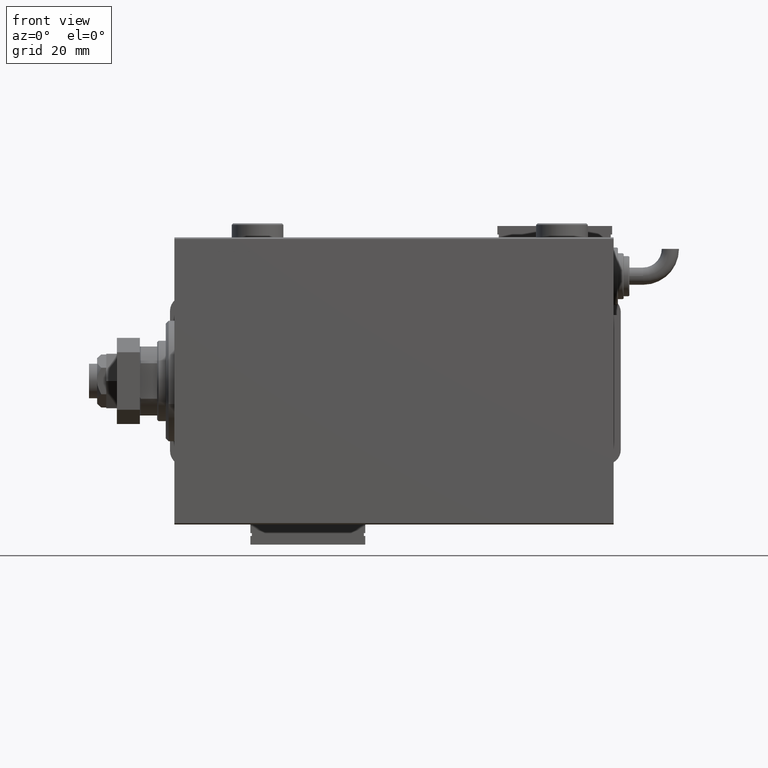
[diagram: clean part render]
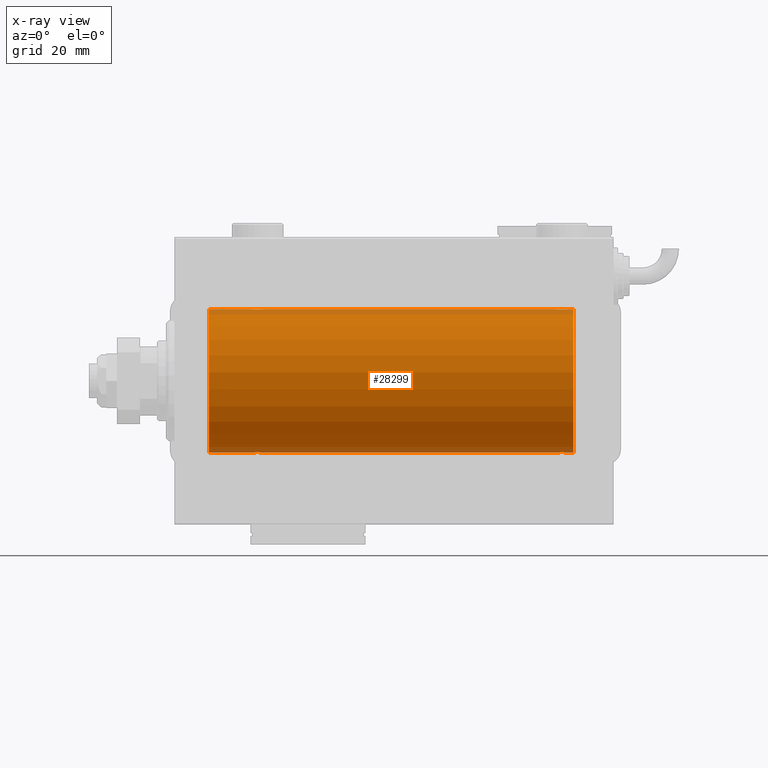
[diagram: x-ray — body ghosted, one internal face saturated and labeled with its STEP entity id]
A machine part, front view, then the same camera in x-ray: the body is ghosted and one INTERNAL B-rep face — a face not visible from any outside direction — is saturated and labeled: STEP entity #28299.
In plain terms, the highlighted cylindrical surface (partial cylindrical patch) has radius 25 mm, axis along (-1, -0, -0).
Its self-contained STEP definition (entity closure, byte-faithful):
#92 = ORIENTED_EDGE ( 'NONE', *, *, #48829, .T. ) ;
#120 = CARTESIAN_POINT ( 'NONE',  ( 27.01250184165601453, -1.525407911884366863, 24.95379469572361941 ) ) ;
#150 = CARTESIAN_POINT ( 'NONE',  ( 139.0000000000000000, 0.000000000000000000, 25.00000000000000000 ) ) ;
#619 = CARTESIAN_POINT ( 'NONE',  ( 136.1072384583841028, -2.247417070759893942, 24.89885693081946627 ) ) ;
#912 = CARTESIAN_POINT ( 'NONE',  ( 135.8043566091630510, -2.372734907014173000, 24.88722742718433878 ) ) ;
#1842 = CARTESIAN_POINT ( 'NONE',  ( 26.50000000000000355, -1.828402720252098442E-15, -25.00000000000000000 ) ) ;
#1928 = CARTESIAN_POINT ( 'NONE',  ( 135.8078834240581330, -2.371528299825745645, -24.88734287464372130 ) ) ;
#1951 = CARTESIAN_POINT ( 'NONE',  ( 139.0000000000000000, 0.000000000000000000, 0.000000000000000000 ) ) ;
#2135 = VECTOR ( 'NONE', #45129, 1000.000000000000000 ) ;
#2373 = CARTESIAN_POINT ( 'NONE',  ( 12.00000000000001066, 3.061616997868383043E-15, -25.00000000000000000 ) ) ;
#2447 = CARTESIAN_POINT ( 'NONE',  ( 27.89276154161590426, -2.247417070759891278, -24.89885693081946272 ) ) ;
#2837 = CARTESIAN_POINT ( 'NONE',  ( 136.1103679650886988, -2.245863995402897384, -24.89899750494197761 ) ) ;
#3706 = EDGE_CURVE ( 'NONE', #10715, #47075, #18852, .T. ) ;
#3928 = CARTESIAN_POINT ( 'NONE',  ( 139.0000000000000000, 0.000000000000000000, 25.00000000000000000 ) ) ;
#3998 = AXIS2_PLACEMENT_3D ( 'NONE', #58418, #59022, #53474 ) ;
#4640 = CARTESIAN_POINT ( 'NONE',  ( 137.4999999999999716, -0.3305063766663748903, 24.99999999999999289 ) ) ;
#4755 = CARTESIAN_POINT ( 'NONE',  ( 31.16827641493957657, -1.255214705003185438, 24.96884293994578385 ) ) ;
#4865 = ORIENTED_EDGE ( 'NONE', *, *, #32957, .F. ) ;
#4951 = VERTEX_POINT ( 'NONE', #60870 ) ;
#5244 = CARTESIAN_POINT ( 'NONE',  ( 133.0125018416559328, -1.525407911884356205, 24.95379469572361586 ) ) ;
#5436 = ORIENTED_EDGE ( 'NONE', *, *, #46568, .T. ) ;
#5553 = CARTESIAN_POINT ( 'NONE',  ( 135.6456066614862834, -2.420689345803761938, 24.88254961038872892 ) ) ;
#5608 = ORIENTED_EDGE ( 'NONE', *, *, #52421, .T. ) ;
#6167 = CARTESIAN_POINT ( 'NONE',  ( 31.24760251019551305, -1.106703319666880514, -24.97594585958023927 ) ) ;
#6482 = CARTESIAN_POINT ( 'NONE',  ( 28.35439333851368815, -2.420689345803754833, -24.88254961038873958 ) ) ;
#6573 = CARTESIAN_POINT ( 'NONE',  ( 132.7539362090593329, -1.109818057797415047, -24.97580694515542987 ) ) ;
#6863 = CARTESIAN_POINT ( 'NONE',  ( 134.6740342996053812, -2.484007091859762983, -24.87630842367762796 ) ) ;
#7083 = CARTESIAN_POINT ( 'NONE',  ( 31.17011290280924740, -1.252049606094333578, -24.96900299967627390 ) ) ;
#7174 = CARTESIAN_POINT ( 'NONE',  ( 132.5665064476025066, -0.6588655613945854084, -24.99312727339970763 ) ) ;
#7522 = EDGE_CURVE ( 'NONE', #10715, #37868, #30656, .T. ) ;
#7986 = CARTESIAN_POINT ( 'NONE',  ( 139.0000000000000000, 0.000000000000000000, 25.00000000000000000 ) ) ;
#8484 = CARTESIAN_POINT ( 'NONE',  ( 31.24606379094066000, -1.109818057797419932, 24.97580694515541921 ) ) ;
#8778 = CARTESIAN_POINT ( 'NONE',  ( 28.67052319885730682, -2.483544361357271857, 24.87635491893501793 ) ) ;
#9081 = CARTESIAN_POINT ( 'NONE',  ( 28.19211657594194520, -2.371528299825748309, 24.88734287464370709 ) ) ;
#9159 = VECTOR ( 'NONE', #16157, 1000.000000000000000 ) ;
#9386 = CARTESIAN_POINT ( 'NONE',  ( 30.25084023924054932, -2.170728182476723500, 24.90574631553725027 ) ) ;
#9418 = DIRECTION ( 'NONE',  ( -1.000000000000000000, -0.000000000000000000, -0.000000000000000000 ) ) ;
#9991 = AXIS2_PLACEMENT_3D ( 'NONE', #1951, #20782, #39634 ) ;
#10664 = FACE_OUTER_BOUND ( 'NONE', #45503, .T. ) ;
#10715 = VERTEX_POINT ( 'NONE', #13430 ) ;
#10784 = CARTESIAN_POINT ( 'NONE',  ( 134.8329350482193831, -2.499872792855079240, 24.87469871246083031 ) ) ;
#11101 = CARTESIAN_POINT ( 'NONE',  ( 30.25383195424503313, -2.169003991399864884, -24.90589728951138682 ) ) ;
#11192 = CARTESIAN_POINT ( 'NONE',  ( 135.6490439016909875, -2.419770561643898255, -24.88263927071751169 ) ) ;
#11709 = CARTESIAN_POINT ( 'NONE',  ( 27.47743225659810307, -1.989585286700239708, -24.92087098724766392 ) ) ;
#12008 = CARTESIAN_POINT ( 'NONE',  ( 28.67403429960539896, -2.484007091859758543, -24.87630842367763151 ) ) ;
#12416 = CARTESIAN_POINT ( 'NONE',  ( 134.1956433908369775, -2.372734907014170336, -24.88722742718433167 ) ) ;
#12676 = CARTESIAN_POINT ( 'NONE',  ( 139.0000000000000000, 3.061616997868383043E-15, -25.00000000000000000 ) ) ;
#12830 = B_SPLINE_CURVE_WITH_KNOTS ( 'NONE', 3,
 ( #33346, #38909, #57766, #15425, #47575, #24070, #43548, #5244, #24372, #20052, #34269, #57143, #19732, #48178, #37686, #23463, #10784, #53123, #29622, #5553, #912, #619, #38591, #52507, #42940, #29017, #56853, #19442, #14797, #38288, #4640, #28710 ),
 .UNSPECIFIED., .F., .F.,
 ( 4, 2, 2, 2, 2, 2, 2, 2, 2, 2, 2, 2, 2, 2, 2, 4 ),
 ( 0.007821024441662296350, 0.008309723826317906223, 0.008798423210973516095, 0.009287122595629124233, 0.009775821980284732371, 0.01026452136494034224, 0.01075322074959595212, 0.01124192013425156025, 0.01173061951890716839, 0.01221931890356277826, 0.01270801828821838814, 0.01319671767287399627, 0.01368541705752960788, 0.01417411644218521602, 0.01466281582684082589, 0.01564021459615201268 ),
 .UNSPECIFIED. ) ;
#13430 = CARTESIAN_POINT ( 'NONE',  ( 139.0000000000000000, 3.061616997868383043E-15, -25.00000000000000000 ) ) ;
#13445 = LINE ( 'NONE', #150, #28877 ) ;
#14014 = CARTESIAN_POINT ( 'NONE',  ( 29.32596570039459394, -2.484007091859766092, 24.87630842367763506 ) ) ;
#14797 = CARTESIAN_POINT ( 'NONE',  ( 137.2460637909406955, -1.109818057797409718, 24.97580694515542632 ) ) ;
#14947 = EDGE_CURVE ( 'NONE', #36517, #4951, #50306, .T. ) ;
#15425 = CARTESIAN_POINT ( 'NONE',  ( 132.5798509077907283, -0.6480119923854213981, 24.99212088949391131 ) ) ;
#15428 = CARTESIAN_POINT ( 'NONE',  ( 29.80788342405805835, -2.371528299825740760, -24.88734287464371064 ) ) ;
#15823 = CARTESIAN_POINT ( 'NONE',  ( 135.3294768011427323, -2.483544361357263419, -24.87635491893501083 ) ) ;
#15850 = CIRCLE ( 'NONE', #3998, 25.00000000000000000 ) ;
#15912 = DIRECTION ( 'NONE',  ( 0.000000000000000000, 0.000000000000000000, 1.000000000000000000 ) ) ;
#16157 = DIRECTION ( 'NONE',  ( -1.000000000000000000, -0.000000000000000000, -0.000000000000000000 ) ) ;
#16242 = ORIENTED_EDGE ( 'NONE', *, *, #51890, .F. ) ;
#16345 = CARTESIAN_POINT ( 'NONE',  ( 30.11036796508864555, -2.245863995402895164, -24.89899750494197406 ) ) ;
#16436 = CARTESIAN_POINT ( 'NONE',  ( 133.8927615416158972, -2.247417070759893498, -24.89885693081946982 ) ) ;
#16489 = CARTESIAN_POINT ( 'NONE',  ( 137.5000000000000000, 1.404322005998729010E-15, 25.00000000000000000 ) ) ;
#16645 = CARTESIAN_POINT ( 'NONE',  ( 26.75393620905933645, -1.109818057797413715, -24.97580694515542277 ) ) ;
#16730 = CARTESIAN_POINT ( 'NONE',  ( 137.4841784005766101, -0.3254210271412156796, -24.99840249400845238 ) ) ;
#17045 = CARTESIAN_POINT ( 'NONE',  ( 136.5253618224307957, -1.987446652080256060, -24.92104239223419881 ) ) ;
#18052 = CARTESIAN_POINT ( 'NONE',  ( 30.52256774340189338, -1.989585286700249256, 24.92087098724766747 ) ) ;
#18096 = ORIENTED_EDGE ( 'NONE', *, *, #26273, .T. ) ;
#18335 = VERTEX_POINT ( 'NONE', #28065 ) ;
#18852 = CIRCLE ( 'NONE', #9991, 25.00000000000000000 ) ;
#18947 = CARTESIAN_POINT ( 'NONE',  ( 31.50000000000000000, -6.390602579065537931E-15, 25.00000000000000000 ) ) ;
#19442 = CARTESIAN_POINT ( 'NONE',  ( 137.1682764149395837, -1.255214705003166564, 24.96884293994578385 ) ) ;
#19486 = DIRECTION ( 'NONE',  ( -1.000000000000000000, -0.000000000000000000, -0.000000000000000000 ) ) ;
#19732 = CARTESIAN_POINT ( 'NONE',  ( 133.8896320349113580, -2.245863995402900049, 24.89899750494197050 ) ) ;
#20052 = CARTESIAN_POINT ( 'NONE',  ( 133.3461666385066167, -1.881857718844717642, 24.92933960374833546 ) ) ;
#20366 = CARTESIAN_POINT ( 'NONE',  ( 26.50000000000001066, -0.3305063766663757785, -25.00000000000000355 ) ) ;
#20580 = LINE ( 'NONE', #52733, #58142 ) ;
#20758 = CARTESIAN_POINT ( 'NONE',  ( 137.5000000000000000, 3.061616978453486307E-15, -25.00000000000000000 ) ) ;
#20782 = DIRECTION ( 'NONE',  ( -1.000000000000000000, 0.000000000000000000, 0.000000000000000000 ) ) ;
#21064 = CARTESIAN_POINT ( 'NONE',  ( 137.2476025101955202, -1.106703319666876295, -24.97594585958023927 ) ) ;
#23281 = CARTESIAN_POINT ( 'NONE',  ( 26.51582159942343608, -0.3254210271412222300, 24.99840249400844883 ) ) ;
#23463 = CARTESIAN_POINT ( 'NONE',  ( 134.6705231988572962, -2.483544361357268304, 24.87635491893501793 ) ) ;
#23571 = CARTESIAN_POINT ( 'NONE',  ( 31.49999999999997158, -0.3305063766663704494, 25.00000000000000000 ) ) ;
#24070 = CARTESIAN_POINT ( 'NONE',  ( 132.7523974898044798, -1.106703319666880958, 24.97594585958023217 ) ) ;
#24251 = CYLINDRICAL_SURFACE ( 'NONE', #36446, 25.00000000000000000 ) ;
#24372 = CARTESIAN_POINT ( 'NONE',  ( 133.1158761721353301, -1.651251241585103724, 24.94567559498349141 ) ) ;
#24988 = CARTESIAN_POINT ( 'NONE',  ( 27.34878866440888601, -1.884161199660611796, -24.92916496727982434 ) ) ;
#25328 = CARTESIAN_POINT ( 'NONE',  ( 31.50000000000000000, -6.390602579065537931E-15, 25.00000000000000000 ) ) ;
#25530 = VERTEX_POINT ( 'NONE', #42471 ) ;
#25589 = CARTESIAN_POINT ( 'NONE',  ( 30.98749815834397481, -1.525407911884360868, -24.95379469572361941 ) ) ;
#25764 = EDGE_CURVE ( 'NONE', #36517, #54232, #56634, .T. ) ;
#25898 = CARTESIAN_POINT ( 'NONE',  ( 26.83172358506042698, -1.255214705003176112, -24.96884293994577320 ) ) ;
#25988 = CARTESIAN_POINT ( 'NONE',  ( 132.5000000000000284, -0.3305063766663819402, -24.99999999999999645 ) ) ;
#26273 = EDGE_CURVE ( 'NONE', #18335, #42145, #33392, .T. ) ;
#26298 = CARTESIAN_POINT ( 'NONE',  ( 133.0146196628290340, -1.528152964861315244, -24.95362559291378801 ) ) ;
#26467 = VERTEX_POINT ( 'NONE', #42914 ) ;
#27317 = CARTESIAN_POINT ( 'NONE',  ( 31.43349355239747567, -0.6588655613945917366, 24.99312727339970053 ) ) ;
#27617 = CARTESIAN_POINT ( 'NONE',  ( 30.98538033717094464, -1.528152964861315244, 24.95362559291378801 ) ) ;
#27927 = CARTESIAN_POINT ( 'NONE',  ( 28.35095609830903385, -2.419770561643910245, 24.88263927071751169 ) ) ;
#28065 = CARTESIAN_POINT ( 'NONE',  ( 26.50000000000000355, -1.828402720252098442E-15, -25.00000000000000000 ) ) ;
#28230 = CARTESIAN_POINT ( 'NONE',  ( 30.65121133559111755, -1.884161199660622454, 24.92916496727982434 ) ) ;
#28299 = ADVANCED_FACE ( 'NONE', ( #10664 ), #24251, .F. ) ;
#28710 = CARTESIAN_POINT ( 'NONE',  ( 137.5000000000000000, 1.404322005998729010E-15, 25.00000000000000000 ) ) ;
#28877 = VECTOR ( 'NONE', #9418, 1000.000000000000000 ) ;
#29017 = CARTESIAN_POINT ( 'NONE',  ( 136.8818595414864205, -1.653834020452942477, 24.94550385189585029 ) ) ;
#29622 = CARTESIAN_POINT ( 'NONE',  ( 135.3259657003945620, -2.484007091859763872, 24.87630842367762796 ) ) ;
#29930 = CARTESIAN_POINT ( 'NONE',  ( 29.32947680114268962, -2.483544361357264751, -24.87635491893502149 ) ) ;
#30026 = CARTESIAN_POINT ( 'NONE',  ( 134.3543933385136881, -2.420689345803760162, -24.88254961038872892 ) ) ;
#30243 = CARTESIAN_POINT ( 'NONE',  ( 26.56650644760253499, -0.6588655613945862966, -24.99312727339971119 ) ) ;
#30314 = CARTESIAN_POINT ( 'NONE',  ( 26.50000000000000355, -1.940558383798427991E-23, 25.00000000000000000 ) ) ;
#30335 = CARTESIAN_POINT ( 'NONE',  ( 136.9874981583439819, -1.525407911884361534, -24.95379469572361941 ) ) ;
#30633 = CARTESIAN_POINT ( 'NONE',  ( 137.1701129028092510, -1.252049606094334022, -24.96900299967627390 ) ) ;
#30656 = LINE ( 'NONE', #54780, #9159 ) ;
#31257 = CARTESIAN_POINT ( 'NONE',  ( 133.4774322565981208, -1.989585286700252809, -24.92087098724766037 ) ) ;
#31956 = CARTESIAN_POINT ( 'NONE',  ( 26.50000000000000711, -0.1631750940176204812, 25.00000000000000711 ) ) ;
#32256 = CARTESIAN_POINT ( 'NONE',  ( 26.62784030591392437, -0.8058335233485459659, 24.98746277938383287 ) ) ;
#32859 = CARTESIAN_POINT ( 'NONE',  ( 30.10723845838409929, -2.247417070759899271, 24.89885693081946272 ) ) ;
#32957 = EDGE_CURVE ( 'NONE', #47075, #57058, #20580, .T. ) ;
#33003 = ORIENTED_EDGE ( 'NONE', *, *, #25764, .T. ) ;
#33346 = CARTESIAN_POINT ( 'NONE',  ( 132.5000000000000000, -1.941505016884693205E-23, 25.00000000000000000 ) ) ;
#33392 = LINE ( 'NONE', #47303, #34358 ) ;
#34144 = CARTESIAN_POINT ( 'NONE',  ( 139.0000000000000000, 0.000000000000000000, 0.000000000000000000 ) ) ;
#34269 = CARTESIAN_POINT ( 'NONE',  ( 133.4746381775692043, -1.987446652080256948, 24.92104239223420592 ) ) ;
#34272 = CARTESIAN_POINT ( 'NONE',  ( 29.64904390169096970, -2.419770561643902695, -24.88263927071750459 ) ) ;
#34358 = VECTOR ( 'NONE', #19486, 1000.000000000000000 ) ;
#34573 = CARTESIAN_POINT ( 'NONE',  ( 31.50000000000000000, 3.061616978460191625E-15, -25.00000000000000000 ) ) ;
#35190 = CARTESIAN_POINT ( 'NONE',  ( 28.83676410361456632, -2.500125740978188738, -24.87467329022545215 ) ) ;
#35281 = CARTESIAN_POINT ( 'NONE',  ( 133.7491597607594542, -2.170728182476725276, -24.90574631553725027 ) ) ;
#35578 = CARTESIAN_POINT ( 'NONE',  ( 137.4201490922092717, -0.6480119923854158470, -24.99212088949390775 ) ) ;
#35899 = CARTESIAN_POINT ( 'NONE',  ( 136.6538333614933833, -1.881857718844715199, -24.92933960374833546 ) ) ;
#36446 = AXIS2_PLACEMENT_3D ( 'NONE', #34144, #57640, #15912 ) ;
#36517 = VERTEX_POINT ( 'NONE', #30314 ) ;
#36748 = EDGE_CURVE ( 'NONE', #48834, #18335, #43043, .T. ) ;
#37202 = CARTESIAN_POINT ( 'NONE',  ( 26.50000000000000355, -1.940558383798427991E-23, 25.00000000000000000 ) ) ;
#37479 = ORIENTED_EDGE ( 'NONE', *, *, #36748, .T. ) ;
#37496 = CARTESIAN_POINT ( 'NONE',  ( 26.82988709719075970, -1.252049606094339351, 24.96900299967627390 ) ) ;
#37686 = CARTESIAN_POINT ( 'NONE',  ( 134.3509560983090694, -2.419770561643906248, 24.88263927071751169 ) ) ;
#37868 = VERTEX_POINT ( 'NONE', #53362 ) ;
#38288 = CARTESIAN_POINT ( 'NONE',  ( 137.4334935523974650, -0.6588655613945811895, 24.99312727339969697 ) ) ;
#38591 = CARTESIAN_POINT ( 'NONE',  ( 136.2508402392405173, -2.170728182476725276, 24.90574631553724672 ) ) ;
#38909 = CARTESIAN_POINT ( 'NONE',  ( 132.5000000000000000, -0.1631750940176186493, 25.00000000000001066 ) ) ;
#38912 = CARTESIAN_POINT ( 'NONE',  ( 30.88412382786471611, -1.651251241585095508, -24.94567559498348785 ) ) ;
#39162 = ORIENTED_EDGE ( 'NONE', *, *, #3706, .F. ) ;
#39634 = DIRECTION ( 'NONE',  ( 0.000000000000000000, 0.000000000000000000, 1.000000000000000000 ) ) ;
#39771 = ORIENTED_EDGE ( 'NONE', *, *, #7522, .T. ) ;
#39913 = CARTESIAN_POINT ( 'NONE',  ( 136.2538319542450154, -2.169003991399864884, -24.90589728951138682 ) ) ;
#40524 = CARTESIAN_POINT ( 'NONE',  ( 137.3721596940860650, -0.8058335233485393045, -24.98746277938383287 ) ) ;
#41541 = CARTESIAN_POINT ( 'NONE',  ( 29.80435660916301899, -2.372734907014176553, 24.88722742718433878 ) ) ;
#41846 = CARTESIAN_POINT ( 'NONE',  ( 27.47463817756919369, -1.987446652080264720, 24.92104239223420592 ) ) ;
#42145 = VERTEX_POINT ( 'NONE', #2373 ) ;
#42153 = CARTESIAN_POINT ( 'NONE',  ( 27.74616804575498108, -2.169003991399871989, 24.90589728951138326 ) ) ;
#42445 = CARTESIAN_POINT ( 'NONE',  ( 26.57985090779070703, -0.6480119923854221753, 24.99212088949390420 ) ) ;
#42471 = CARTESIAN_POINT ( 'NONE',  ( 132.5000000000000000, -1.941505016884693205E-23, 25.00000000000000000 ) ) ;
#42914 = CARTESIAN_POINT ( 'NONE',  ( 132.5000000000000000, -7.333514367867041916E-15, -25.00000000000000000 ) ) ;
#42940 = CARTESIAN_POINT ( 'NONE',  ( 136.6512113355911708, -1.884161199660621344, 24.92916496727982789 ) ) ;
#43043 = B_SPLINE_CURVE_WITH_KNOTS ( 'NONE', 3,
 ( #34573, #58074, #48487, #43866, #53438, #6167, #7083, #25589, #38912, #48181, #58685, #11101, #16345, #15428, #34272, #29930, #48807, #35190, #12008, #6482, #53126, #2447, #54055, #11709, #24988, #44177, #49402, #25898, #16645, #30243, #20366, #1842 ),
 .UNSPECIFIED., .F., .F.,
 ( 4, 2, 2, 2, 2, 2, 2, 2, 2, 2, 2, 2, 2, 2, 2, 4 ),
 ( 0.007821024441662299820, 0.008309723826317909692, 0.008798423210973517830, 0.009287122595629124233, 0.009775821980284728902, 0.01026452136494033357, 0.01075322074959593997, 0.01124192013425154464, 0.01173061951890715104, 0.01221931890356275571, 0.01270801828821836038, 0.01319671767287396852, 0.01368541705752957319, 0.01417411644218517959, 0.01466281582684078426, 0.01564021459615199533 ),
 .UNSPECIFIED. ) ;
#43465 = DIRECTION ( 'NONE',  ( -1.000000000000000000, -0.000000000000000000, -0.000000000000000000 ) ) ;
#43548 = CARTESIAN_POINT ( 'NONE',  ( 132.8298870971907490, -1.252049606094326695, 24.96900299967627390 ) ) ;
#43866 = CARTESIAN_POINT ( 'NONE',  ( 31.42014909220928942, -0.6480119923854186226, -24.99212088949390420 ) ) ;
#44177 = CARTESIAN_POINT ( 'NONE',  ( 27.11814045851354393, -1.653834020452933151, -24.94550385189584674 ) ) ;
#44457 = B_SPLINE_CURVE_WITH_KNOTS ( 'NONE', 3,
 ( #20758, #53528, #16730, #35578, #40524, #21064, #30633, #30335, #58775, #35899, #17045, #39913, #2837, #1928, #11192, #15823, #54755, #44556, #6863, #30026, #12416, #16436, #35281, #31257, #48898, #54138, #26298, #49494, #6573, #7174, #25988, #50111 ),
 .UNSPECIFIED., .F., .F.,
 ( 4, 2, 2, 2, 2, 2, 2, 2, 2, 2, 2, 2, 2, 2, 2, 4 ),
 ( 0.007821024441662296350, 0.008309723826317904488, 0.008798423210973514361, 0.009287122595629122498, 0.009775821980284732371, 0.01026452136494034051, 0.01075322074959594865, 0.01124192013425155852, 0.01173061951890716666, 0.01221931890356277653, 0.01270801828821838467, 0.01319671767287399280, 0.01368541705752960094, 0.01417411644218521082, 0.01466281582684082069, 0.01564021459615200574 ),
 .UNSPECIFIED. ) ;
#44556 = CARTESIAN_POINT ( 'NONE',  ( 134.8367641036145699, -2.500125740978193178, -24.87467329022544860 ) ) ;
#45077 = DIRECTION ( 'NONE',  ( -1.000000000000000000, -0.000000000000000000, -0.000000000000000000 ) ) ;
#45129 = DIRECTION ( 'NONE',  ( -1.000000000000000000, -0.000000000000000000, -0.000000000000000000 ) ) ;
#45503 = EDGE_LOOP ( 'NONE', ( #39162, #39771, #55826, #92, #37479, #18096, #5436, #55600, #33003, #16242, #5608, #4865 ) ) ;
#46568 = EDGE_CURVE ( 'NONE', #42145, #4951, #15850, .T. ) ;
#47075 = VERTEX_POINT ( 'NONE', #3928 ) ;
#47084 = CARTESIAN_POINT ( 'NONE',  ( 30.88185954148645251, -1.653834020452943809, 24.94550385189585029 ) ) ;
#47303 = CARTESIAN_POINT ( 'NONE',  ( 139.0000000000000000, 3.061616997868383043E-15, -25.00000000000000000 ) ) ;
#47575 = CARTESIAN_POINT ( 'NONE',  ( 132.6278403059139634, -0.8058335233485443005, 24.98746277938383287 ) ) ;
#48178 = CARTESIAN_POINT ( 'NONE',  ( 134.1921165759419239, -2.371528299825747421, 24.88734287464370709 ) ) ;
#48181 = CARTESIAN_POINT ( 'NONE',  ( 30.65383336149337623, -1.881857718844709870, -24.92933960374833191 ) ) ;
#48487 = CARTESIAN_POINT ( 'NONE',  ( 31.48417840057656747, -0.3254210271412188993, -24.99840249400844883 ) ) ;
#48807 = CARTESIAN_POINT ( 'NONE',  ( 29.16706495178059910, -2.499872792855075687, -24.87469871246081965 ) ) ;
#48829 = EDGE_CURVE ( 'NONE', #26467, #48834, #55024, .T. ) ;
#48834 = VERTEX_POINT ( 'NONE', #50365 ) ;
#48898 = CARTESIAN_POINT ( 'NONE',  ( 133.3487886644088860, -1.884161199660620456, -24.92916496727982079 ) ) ;
#49402 = CARTESIAN_POINT ( 'NONE',  ( 27.01461966282905891, -1.528152964861306584, -24.95362559291379156 ) ) ;
#49494 = CARTESIAN_POINT ( 'NONE',  ( 132.8317235850605016, -1.255214705003186548, -24.96884293994578741 ) ) ;
#50111 = CARTESIAN_POINT ( 'NONE',  ( 132.5000000000000000, -7.333514367867041916E-15, -25.00000000000000000 ) ) ;
#50306 = LINE ( 'NONE', #7986, #59773 ) ;
#50365 = CARTESIAN_POINT ( 'NONE',  ( 31.50000000000000000, 3.061616978460191625E-15, -25.00000000000000000 ) ) ;
#50808 = CARTESIAN_POINT ( 'NONE',  ( 29.64560666148631540, -2.420689345803762382, 24.88254961038873958 ) ) ;
#51103 = CARTESIAN_POINT ( 'NONE',  ( 27.11587617213529100, -1.651251241585102614, 24.94567559498349141 ) ) ;
#51407 = CARTESIAN_POINT ( 'NONE',  ( 26.75239748980449050, -1.106703319666882956, 24.97594585958023572 ) ) ;
#51890 = EDGE_CURVE ( 'NONE', #25530, #54232, #13445, .T. ) ;
#52421 = EDGE_CURVE ( 'NONE', #25530, #57058, #12830, .T. ) ;
#52507 = CARTESIAN_POINT ( 'NONE',  ( 136.5225677434018792, -1.989585286700252809, 24.92087098724766747 ) ) ;
#52733 = CARTESIAN_POINT ( 'NONE',  ( 139.0000000000000000, 0.000000000000000000, 25.00000000000000000 ) ) ;
#53123 = CARTESIAN_POINT ( 'NONE',  ( 135.1632358963854301, -2.500125740978193178, 24.87467329022544504 ) ) ;
#53126 = CARTESIAN_POINT ( 'NONE',  ( 28.19564339083697746, -2.372734907014167671, -24.88722742718433167 ) ) ;
#53150 = EDGE_CURVE ( 'NONE', #37868, #26467, #44457, .T. ) ;
#53362 = CARTESIAN_POINT ( 'NONE',  ( 137.5000000000000000, 3.061616978453486307E-15, -25.00000000000000000 ) ) ;
#53438 = CARTESIAN_POINT ( 'NONE',  ( 31.37215969408608274, -0.8058335233485438565, -24.98746277938383997 ) ) ;
#53474 = DIRECTION ( 'NONE',  ( 0.000000000000000000, 0.000000000000000000, 1.000000000000000000 ) ) ;
#53528 = CARTESIAN_POINT ( 'NONE',  ( 137.5000000000000000, -0.1631750940176147080, -25.00000000000000711 ) ) ;
#54055 = CARTESIAN_POINT ( 'NONE',  ( 27.74915976075944712, -2.170728182476714174, -24.90574631553725027 ) ) ;
#54138 = CARTESIAN_POINT ( 'NONE',  ( 133.1181404585135226, -1.653834020452942477, -24.94550385189584318 ) ) ;
#54232 = VERTEX_POINT ( 'NONE', #25328 ) ;
#54755 = CARTESIAN_POINT ( 'NONE',  ( 135.1670649517805884, -2.499872792855077464, -24.87469871246082320 ) ) ;
#54780 = CARTESIAN_POINT ( 'NONE',  ( 139.0000000000000000, 3.061616997868383043E-15, -25.00000000000000000 ) ) ;
#55024 = LINE ( 'NONE', #12676, #2135 ) ;
#55600 = ORIENTED_EDGE ( 'NONE', *, *, #14947, .F. ) ;
#55826 = ORIENTED_EDGE ( 'NONE', *, *, #53150, .T. ) ;
#56357 = CARTESIAN_POINT ( 'NONE',  ( 28.83293504821939734, -2.499872792855082793, 24.87469871246083031 ) ) ;
#56634 = B_SPLINE_CURVE_WITH_KNOTS ( 'NONE', 3,
 ( #37202, #31956, #23281, #42445, #32256, #51407, #37496, #120, #51103, #60689, #41846, #42153, #60076, #9081, #27927, #8778, #56357, #56660, #14014, #50808, #41541, #32859, #9386, #18052, #28230, #47084, #27617, #4755, #8484, #27317, #23571, #18947 ),
 .UNSPECIFIED., .F., .F.,
 ( 4, 2, 2, 2, 2, 2, 2, 2, 2, 2, 2, 2, 2, 2, 2, 4 ),
 ( 0.007821024441662254717, 0.008309723826317859385, 0.008798423210973464054, 0.009287122595629068722, 0.009775821980284673390, 0.01026452136494027806, 0.01075322074959588099, 0.01124192013425148566, 0.01173061951890709033, 0.01221931890356269500, 0.01270801828821829967, 0.01319671767287390260, 0.01368541705752950727, 0.01417411644218511194, 0.01466281582684071660, 0.01564021459615192594 ),
 .UNSPECIFIED. ) ;
#56660 = CARTESIAN_POINT ( 'NONE',  ( 29.16323589638542302, -2.500125740978195843, 24.87467329022545215 ) ) ;
#56853 = CARTESIAN_POINT ( 'NONE',  ( 136.9853803371709375, -1.528152964861297258, 24.95362559291378446 ) ) ;
#57058 = VERTEX_POINT ( 'NONE', #16489 ) ;
#57143 = CARTESIAN_POINT ( 'NONE',  ( 133.7461680457549846, -2.169003991399866216, 24.90589728951138682 ) ) ;
#57640 = DIRECTION ( 'NONE',  ( -1.000000000000000000, -0.000000000000000000, -0.000000000000000000 ) ) ;
#57766 = CARTESIAN_POINT ( 'NONE',  ( 132.5158215994234752, -0.3254210271412208977, 24.99840249400844527 ) ) ;
#58074 = CARTESIAN_POINT ( 'NONE',  ( 31.49999999999999289, -0.1631750940176170117, -25.00000000000000711 ) ) ;
#58142 = VECTOR ( 'NONE', #43465, 1000.000000000000000 ) ;
#58418 = CARTESIAN_POINT ( 'NONE',  ( 12.00000000000001066, 0.000000000000000000, 0.000000000000000000 ) ) ;
#58685 = CARTESIAN_POINT ( 'NONE',  ( 30.52536182243080631, -1.987446652080256504, -24.92104239223419881 ) ) ;
#58775 = CARTESIAN_POINT ( 'NONE',  ( 136.8841238278646983, -1.651251241585101059, -24.94567559498349141 ) ) ;
#59022 = DIRECTION ( 'NONE',  ( -1.000000000000000000, 0.000000000000000000, 0.000000000000000000 ) ) ;
#59773 = VECTOR ( 'NONE', #45077, 1000.000000000000000 ) ;
#60076 = CARTESIAN_POINT ( 'NONE',  ( 27.88963203491136156, -2.245863995402901381, 24.89899750494197050 ) ) ;
#60689 = CARTESIAN_POINT ( 'NONE',  ( 27.34616663850662377, -1.881857718844717642, 24.92933960374833902 ) ) ;
#60870 = CARTESIAN_POINT ( 'NONE',  ( 12.00000000000001066, 0.000000000000000000, 25.00000000000000000 ) ) ;